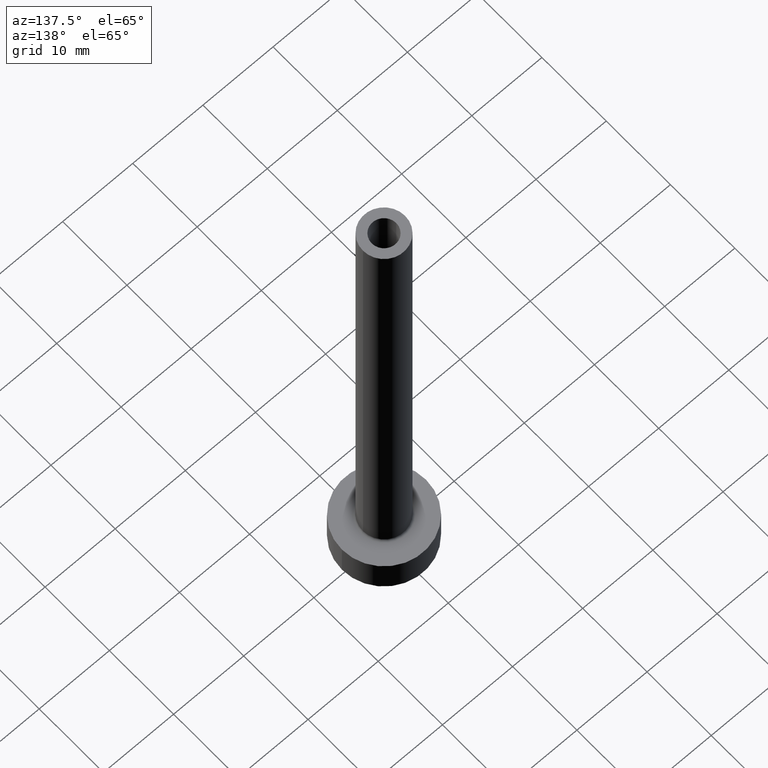
[diagram: clean part render]
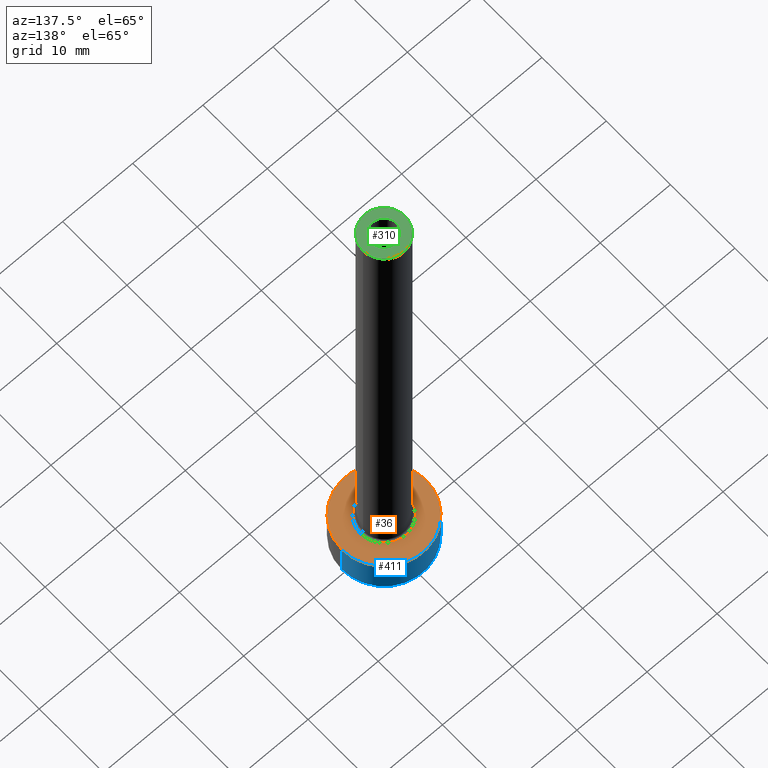
[diagram: same view with three faces highlighted in distinct colors, each labeled with its STEP entity id]
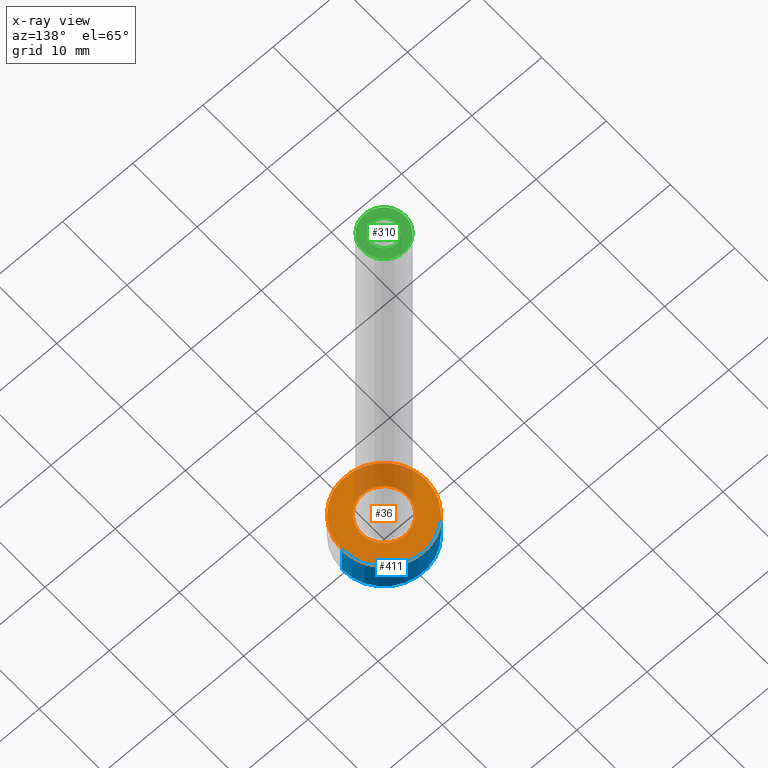
[diagram: x-ray of the same camera — body ghosted, the three highlighted faces saturated]
A machine part, auxiliary view with three faces highlighted in distinct colors.
The next image is the same camera in x-ray (body ghosted, the three faces saturated) — at least one of them is partly hidden behind the body in this view.
Their STEP definitions:

[orange] entity #36 — the highlighted planar face has unit normal (0, 0, 1).
#6 = ORIENTED_EDGE ( 'NONE', *, *, #444, .T. ) ;
#7 = CARTESIAN_POINT ( 'NONE',  ( 0.000000000000000000, 0.000000000000000000, 5.000000000000000000 ) ) ;
#13 = DIRECTION ( 'NONE',  ( 0.000000000000000000, 0.000000000000000000, 1.000000000000000000 ) ) ;
#20 = ORIENTED_EDGE ( 'NONE', *, *, #143, .T. ) ;
#36 = ADVANCED_FACE ( 'NONE', ( #332, #157 ), #203, .T. ) ;
#39 = CARTESIAN_POINT ( 'NONE',  ( -6.000000000000000888, 0.000000000000000000, 5.000000000000000000 ) ) ;
#55 = CIRCLE ( 'NONE', #299, 6.000000000000000888 ) ;
#57 = EDGE_LOOP ( 'NONE', ( #329, #20 ) ) ;
#61 = AXIS2_PLACEMENT_3D ( 'NONE', #257, #156, #186 ) ;
#78 = AXIS2_PLACEMENT_3D ( 'NONE', #135, #271, #242 ) ;
#91 = CARTESIAN_POINT ( 'NONE',  ( 0.000000000000000000, 0.000000000000000000, 5.000000000000000000 ) ) ;
#102 = ORIENTED_EDGE ( 'NONE', *, *, #303, .T. ) ;
#104 = VERTEX_POINT ( 'NONE', #316 ) ;
#111 = VERTEX_POINT ( 'NONE', #347 ) ;
#135 = CARTESIAN_POINT ( 'NONE',  ( 0.000000000000000000, 0.000000000000000000, 5.000000000000000000 ) ) ;
#143 = EDGE_CURVE ( 'NONE', #111, #364, #297, .T. ) ;
#153 = DIRECTION ( 'NONE',  ( 1.000000000000000000, 0.000000000000000000, 0.000000000000000000 ) ) ;
#156 = DIRECTION ( 'NONE',  ( -0.000000000000000000, -0.000000000000000000, -1.000000000000000000 ) ) ;
#157 = FACE_OUTER_BOUND ( 'NONE', #57, .T. ) ;
#174 = DIRECTION ( 'NONE',  ( -0.000000000000000000, -0.000000000000000000, -1.000000000000000000 ) ) ;
#186 = DIRECTION ( 'NONE',  ( 1.000000000000000000, 0.000000000000000000, 0.000000000000000000 ) ) ;
#203 = PLANE ( 'NONE',  #78 ) ;
#219 = AXIS2_PLACEMENT_3D ( 'NONE', #7, #174, #245 ) ;
#242 = DIRECTION ( 'NONE',  ( 1.000000000000000000, 0.000000000000000000, -0.000000000000000000 ) ) ;
#245 = DIRECTION ( 'NONE',  ( 1.000000000000000000, 0.000000000000000000, 0.000000000000000000 ) ) ;
#254 = VERTEX_POINT ( 'NONE', #319 ) ;
#257 = CARTESIAN_POINT ( 'NONE',  ( 0.000000000000000000, 0.000000000000000000, 5.000000000000000000 ) ) ;
#262 = CIRCLE ( 'NONE', #61, 3.300000000000000266 ) ;
#271 = DIRECTION ( 'NONE',  ( 0.000000000000000000, 0.000000000000000000, 1.000000000000000000 ) ) ;
#297 = CIRCLE ( 'NONE', #359, 6.000000000000000888 ) ;
#299 = AXIS2_PLACEMENT_3D ( 'NONE', #336, #13, #153 ) ;
#303 = EDGE_CURVE ( 'NONE', #254, #104, #360, .T. ) ;
#311 = DIRECTION ( 'NONE',  ( 1.000000000000000000, 0.000000000000000000, 0.000000000000000000 ) ) ;
#316 = CARTESIAN_POINT ( 'NONE',  ( -3.300000000000000266, 4.041334437186266003E-16, 4.999999999999999112 ) ) ;
#319 = CARTESIAN_POINT ( 'NONE',  ( 3.300000000000000266, 0.000000000000000000, 4.999999999999999112 ) ) ;
#329 = ORIENTED_EDGE ( 'NONE', *, *, #440, .T. ) ;
#332 = FACE_BOUND ( 'NONE', #358, .T. ) ;
#336 = CARTESIAN_POINT ( 'NONE',  ( 0.000000000000000000, 0.000000000000000000, 5.000000000000000000 ) ) ;
#347 = CARTESIAN_POINT ( 'NONE',  ( 6.000000000000000888, 7.347880794884120722E-16, 5.000000000000000000 ) ) ;
#358 = EDGE_LOOP ( 'NONE', ( #102, #6 ) ) ;
#359 = AXIS2_PLACEMENT_3D ( 'NONE', #91, #415, #311 ) ;
#360 = CIRCLE ( 'NONE', #219, 3.300000000000000266 ) ;
#364 = VERTEX_POINT ( 'NONE', #39 ) ;
#415 = DIRECTION ( 'NONE',  ( 0.000000000000000000, 0.000000000000000000, 1.000000000000000000 ) ) ;
#440 = EDGE_CURVE ( 'NONE', #364, #111, #55, .T. ) ;
#444 = EDGE_CURVE ( 'NONE', #104, #254, #262, .T. ) ;

[blue] entity #411 — the highlighted cylindrical surface (partial cylindrical patch) has radius 6 mm, axis along (-0, -0, -1).
#18 = DIRECTION ( 'NONE',  ( -0.000000000000000000, -0.000000000000000000, -1.000000000000000000 ) ) ;
#19 = VERTEX_POINT ( 'NONE', #227 ) ;
#37 = DIRECTION ( 'NONE',  ( 0.000000000000000000, 0.000000000000000000, 1.000000000000000000 ) ) ;
#38 = ORIENTED_EDGE ( 'NONE', *, *, #343, .T. ) ;
#39 = CARTESIAN_POINT ( 'NONE',  ( -6.000000000000000888, 0.000000000000000000, 5.000000000000000000 ) ) ;
#46 = FACE_OUTER_BOUND ( 'NONE', #193, .T. ) ;
#48 = AXIS2_PLACEMENT_3D ( 'NONE', #260, #18, #302 ) ;
#75 = EDGE_CURVE ( 'NONE', #364, #19, #453, .T. ) ;
#85 = VECTOR ( 'NONE', #167, 1000.000000000000000 ) ;
#91 = CARTESIAN_POINT ( 'NONE',  ( 0.000000000000000000, 0.000000000000000000, 5.000000000000000000 ) ) ;
#110 = DIRECTION ( 'NONE',  ( 1.000000000000000000, 0.000000000000000000, 0.000000000000000000 ) ) ;
#111 = VERTEX_POINT ( 'NONE', #347 ) ;
#118 = CYLINDRICAL_SURFACE ( 'NONE', #48, 6.000000000000000888 ) ;
#143 = EDGE_CURVE ( 'NONE', #111, #364, #297, .T. ) ;
#167 = DIRECTION ( 'NONE',  ( -0.000000000000000000, -0.000000000000000000, -1.000000000000000000 ) ) ;
#183 = AXIS2_PLACEMENT_3D ( 'NONE', #208, #37, #110 ) ;
#193 = EDGE_LOOP ( 'NONE', ( #334, #218, #38, #394 ) ) ;
#208 = CARTESIAN_POINT ( 'NONE',  ( 0.000000000000000000, 0.000000000000000000, 0.000000000000000000 ) ) ;
#218 = ORIENTED_EDGE ( 'NONE', *, *, #295, .T. ) ;
#227 = CARTESIAN_POINT ( 'NONE',  ( -6.000000000000000888, 0.000000000000000000, 0.000000000000000000 ) ) ;
#228 = CIRCLE ( 'NONE', #183, 6.000000000000000888 ) ;
#243 = LINE ( 'NONE', #324, #450 ) ;
#260 = CARTESIAN_POINT ( 'NONE',  ( 0.000000000000000000, 0.000000000000000000, 5.000000000000000000 ) ) ;
#290 = DIRECTION ( 'NONE',  ( -0.000000000000000000, -0.000000000000000000, -1.000000000000000000 ) ) ;
#295 = EDGE_CURVE ( 'NONE', #111, #304, #243, .T. ) ;
#297 = CIRCLE ( 'NONE', #359, 6.000000000000000888 ) ;
#302 = DIRECTION ( 'NONE',  ( -1.000000000000000000, 0.000000000000000000, 0.000000000000000000 ) ) ;
#304 = VERTEX_POINT ( 'NONE', #357 ) ;
#311 = DIRECTION ( 'NONE',  ( 1.000000000000000000, 0.000000000000000000, 0.000000000000000000 ) ) ;
#324 = CARTESIAN_POINT ( 'NONE',  ( 6.000000000000000888, 7.347880794884120722E-16, 5.000000000000000000 ) ) ;
#334 = ORIENTED_EDGE ( 'NONE', *, *, #143, .F. ) ;
#341 = CARTESIAN_POINT ( 'NONE',  ( -6.000000000000000888, 0.000000000000000000, 5.000000000000000000 ) ) ;
#343 = EDGE_CURVE ( 'NONE', #304, #19, #228, .T. ) ;
#347 = CARTESIAN_POINT ( 'NONE',  ( 6.000000000000000888, 7.347880794884120722E-16, 5.000000000000000000 ) ) ;
#357 = CARTESIAN_POINT ( 'NONE',  ( 6.000000000000000888, 7.347880794884120722E-16, 0.000000000000000000 ) ) ;
#359 = AXIS2_PLACEMENT_3D ( 'NONE', #91, #415, #311 ) ;
#364 = VERTEX_POINT ( 'NONE', #39 ) ;
#394 = ORIENTED_EDGE ( 'NONE', *, *, #75, .F. ) ;
#411 = ADVANCED_FACE ( 'NONE', ( #46 ), #118, .T. ) ;
#415 = DIRECTION ( 'NONE',  ( 0.000000000000000000, 0.000000000000000000, 1.000000000000000000 ) ) ;
#450 = VECTOR ( 'NONE', #290, 1000.000000000000000 ) ;
#453 = LINE ( 'NONE', #341, #85 ) ;

[green] entity #310 — the highlighted planar face has unit normal (0, 0, 1).
#4 = AXIS2_PLACEMENT_3D ( 'NONE', #121, #11, #15 ) ;
#5 = FACE_OUTER_BOUND ( 'NONE', #209, .T. ) ;
#8 = VERTEX_POINT ( 'NONE', #87 ) ;
#11 = DIRECTION ( 'NONE',  ( 0.000000000000000000, 0.000000000000000000, 1.000000000000000000 ) ) ;
#12 = ORIENTED_EDGE ( 'NONE', *, *, #421, .T. ) ;
#15 = DIRECTION ( 'NONE',  ( 1.000000000000000000, 0.000000000000000000, 0.000000000000000000 ) ) ;
#23 = CIRCLE ( 'NONE', #321, 3.000000000000000444 ) ;
#26 = DIRECTION ( 'NONE',  ( 1.000000000000000000, 0.000000000000000000, 0.000000000000000000 ) ) ;
#30 = DIRECTION ( 'NONE',  ( 0.000000000000000000, 0.000000000000000000, 1.000000000000000000 ) ) ;
#41 = AXIS2_PLACEMENT_3D ( 'NONE', #181, #255, #50 ) ;
#50 = DIRECTION ( 'NONE',  ( 1.000000000000000000, 0.000000000000000000, 0.000000000000000000 ) ) ;
#68 = AXIS2_PLACEMENT_3D ( 'NONE', #81, #442, #398 ) ;
#73 = CARTESIAN_POINT ( 'NONE',  ( 3.000000000000000444, 3.673940397442060361E-16, 75.00000000000001421 ) ) ;
#81 = CARTESIAN_POINT ( 'NONE',  ( 0.000000000000000000, 0.000000000000000000, 75.00000000000001421 ) ) ;
#87 = CARTESIAN_POINT ( 'NONE',  ( -3.000000000000000444, 0.000000000000000000, 75.00000000000001421 ) ) ;
#121 = CARTESIAN_POINT ( 'NONE',  ( 0.000000000000000000, 0.000000000000000000, 75.00000000000001421 ) ) ;
#152 = VERTEX_POINT ( 'NONE', #385 ) ;
#160 = VERTEX_POINT ( 'NONE', #233 ) ;
#172 = FACE_BOUND ( 'NONE', #372, .T. ) ;
#180 = DIRECTION ( 'NONE',  ( 1.000000000000000000, 0.000000000000000000, -0.000000000000000000 ) ) ;
#181 = CARTESIAN_POINT ( 'NONE',  ( 0.000000000000000000, 0.000000000000000000, 75.00000000000001421 ) ) ;
#187 = EDGE_CURVE ( 'NONE', #390, #8, #23, .T. ) ;
#200 = CIRCLE ( 'NONE', #4, 1.750000000000000000 ) ;
#209 = EDGE_LOOP ( 'NONE', ( #12, #211 ) ) ;
#211 = ORIENTED_EDGE ( 'NONE', *, *, #187, .T. ) ;
#212 = AXIS2_PLACEMENT_3D ( 'NONE', #216, #363, #180 ) ;
#216 = CARTESIAN_POINT ( 'NONE',  ( 0.000000000000000000, 0.000000000000000000, 75.00000000000001421 ) ) ;
#233 = CARTESIAN_POINT ( 'NONE',  ( 1.750000000000000000, 2.143131898507867804E-16, 75.00000000000001421 ) ) ;
#240 = CARTESIAN_POINT ( 'NONE',  ( 0.000000000000000000, 0.000000000000000000, 75.00000000000001421 ) ) ;
#255 = DIRECTION ( 'NONE',  ( 0.000000000000000000, 0.000000000000000000, 1.000000000000000000 ) ) ;
#275 = CIRCLE ( 'NONE', #68, 1.750000000000000000 ) ;
#285 = ORIENTED_EDGE ( 'NONE', *, *, #448, .F. ) ;
#310 = ADVANCED_FACE ( 'NONE', ( #172, #5 ), #317, .T. ) ;
#317 = PLANE ( 'NONE',  #212 ) ;
#321 = AXIS2_PLACEMENT_3D ( 'NONE', #240, #30, #26 ) ;
#330 = ORIENTED_EDGE ( 'NONE', *, *, #419, .F. ) ;
#363 = DIRECTION ( 'NONE',  ( 0.000000000000000000, 0.000000000000000000, 1.000000000000000000 ) ) ;
#372 = EDGE_LOOP ( 'NONE', ( #285, #330 ) ) ;
#385 = CARTESIAN_POINT ( 'NONE',  ( -1.750000000000000000, 0.000000000000000000, 75.00000000000001421 ) ) ;
#390 = VERTEX_POINT ( 'NONE', #73 ) ;
#395 = CIRCLE ( 'NONE', #41, 3.000000000000000444 ) ;
#398 = DIRECTION ( 'NONE',  ( 1.000000000000000000, 0.000000000000000000, 0.000000000000000000 ) ) ;
#419 = EDGE_CURVE ( 'NONE', #160, #152, #200, .T. ) ;
#421 = EDGE_CURVE ( 'NONE', #8, #390, #395, .T. ) ;
#442 = DIRECTION ( 'NONE',  ( 0.000000000000000000, 0.000000000000000000, 1.000000000000000000 ) ) ;
#448 = EDGE_CURVE ( 'NONE', #152, #160, #275, .T. ) ;